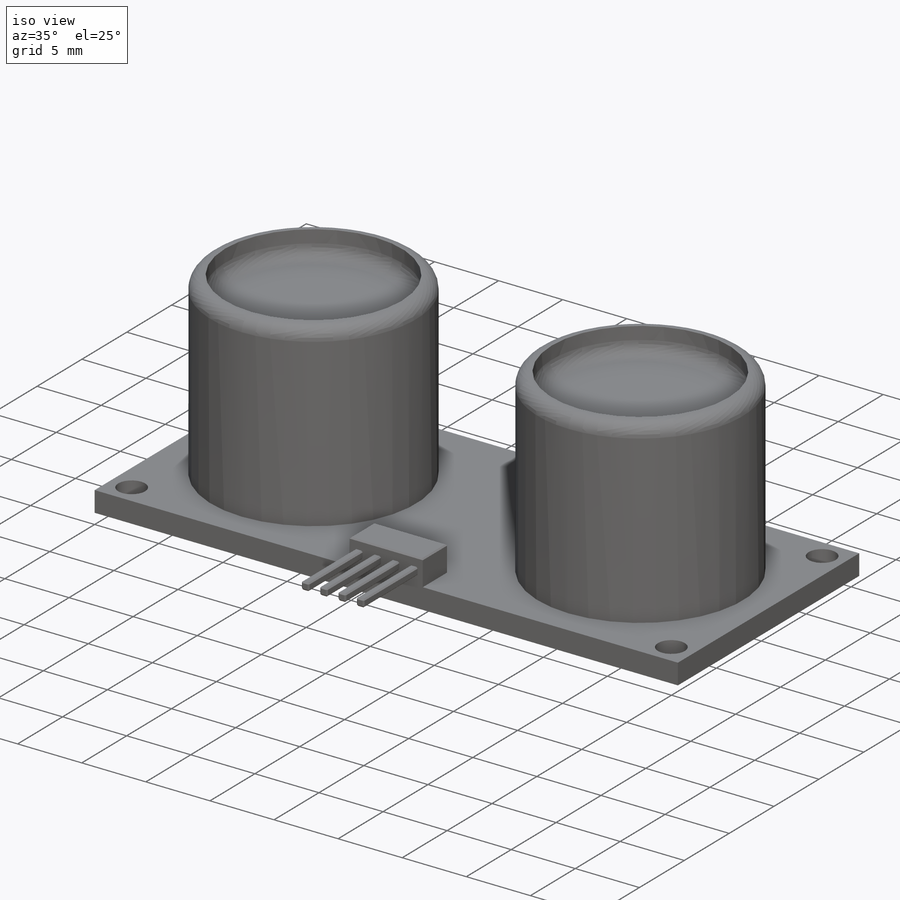
[diagram: iso view]
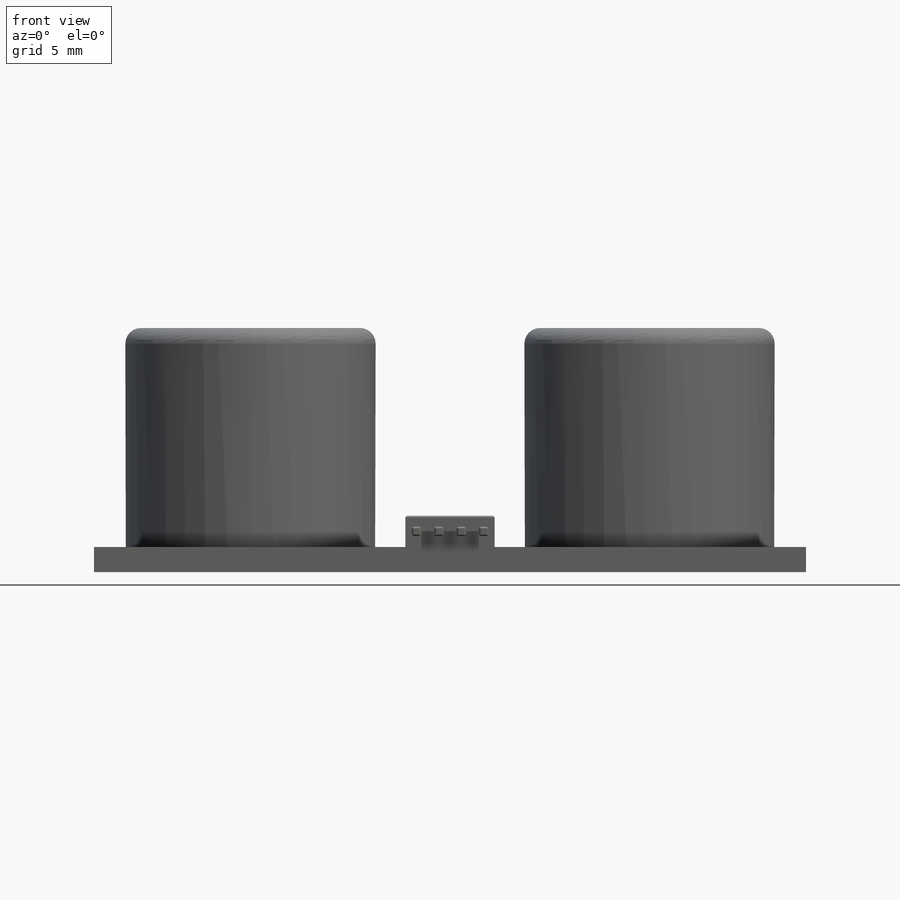
[diagram: front view]
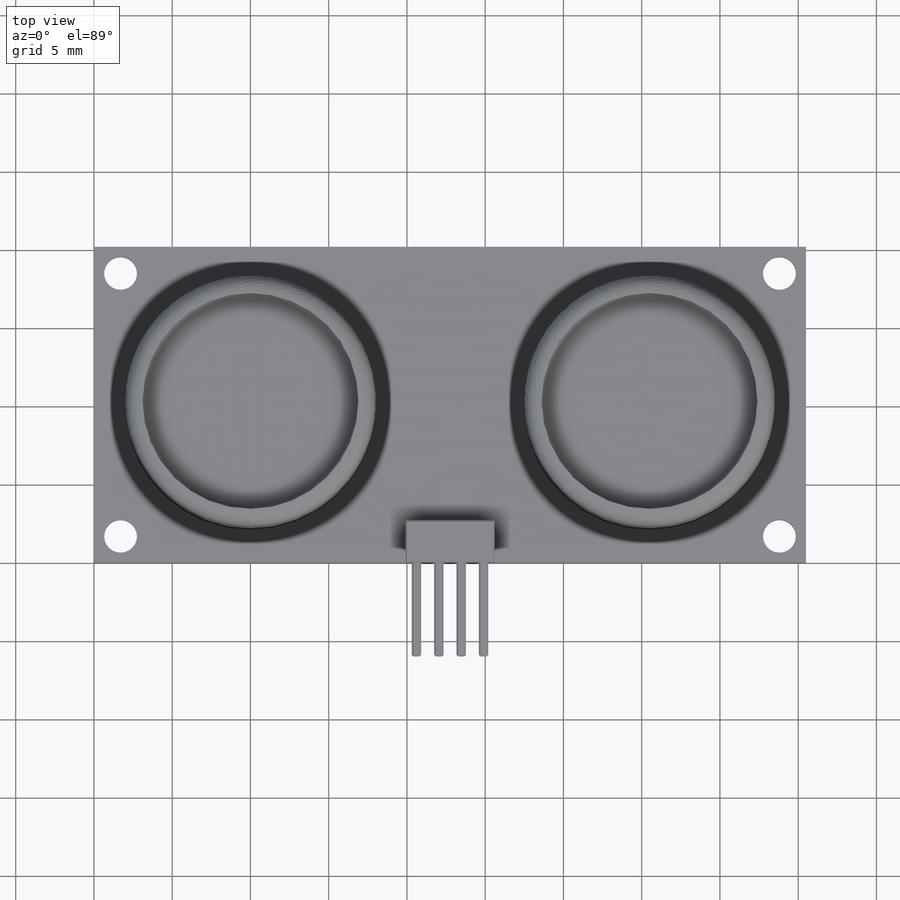
[diagram: top view]
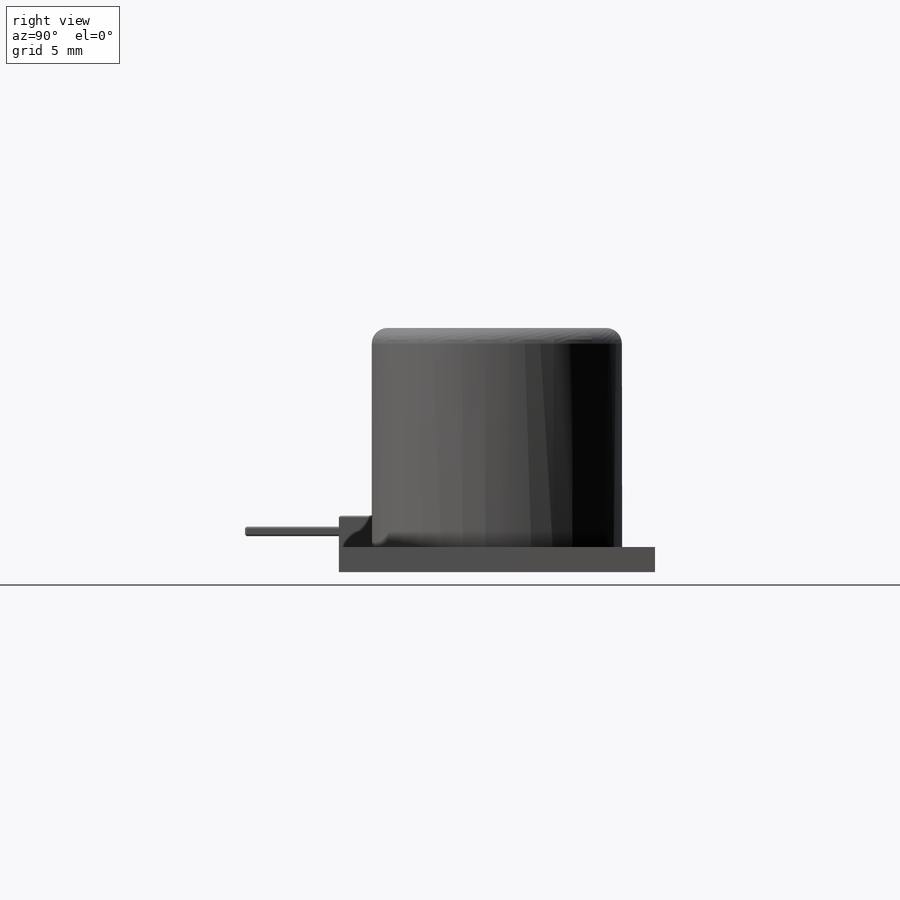
[diagram: right view]
SOLIDWORKS PART (.sldprt)
format: sldprt  version: not decoded by parser v0  size: 427,008 bytes
history: native  units: mm
features: sketch x7, extrude x4, cut_extrude x2, fillet x2, mirror x2, chamfer x2, material x1, plane x1 (+13 scaffold rows collapsed)
feature tree (34):
  scaffold x13  (default folders/planes/origin — collapsed)
  material  "Material <not specified>"
  sketch  "Sketch1"  dims[c1.D1=20.0mm c1.D2=43.0mm c2.D1=20.2mm c2.D2=45.5mm c2.D3=~24.998828mm]
  extrude  "Boss-Extrude1"  Depth=1.6mm
  sketch  "Sketch2"  dims[c1.D1=16.0mm c1.D2=16.0mm c2.D1=~20.034229mm c2.D2=10.0mm]
  extrude  "Boss-Extrude2"  Depth=14mm
  sketch  "Sketch3"  dims[D1=~13.787925mm]
  cut_extrude  "Cut-Extrude1"  Depth=2mm
  fillet  "Fillet1"  Radius=1mm
  fillet  "Fillet2"  Radius=1mm
  plane  "Plane1"
  mirror  "Mirror1"
  sketch  "Sketch4"  dims[D1=2.85mm D2=2.85mm D3=2.7mm D4=2.0mm]
  extrude  "Boss-Extrude3"  Depth=2mm
  sketch  "Sketch5"  dims[c1.D1=0.75mm c1.D2=0.75mm c2.D1=0.6mm c2.D2=4.0]
  extrude  "Boss-Extrude4"  Depth=6mm
  chamfer  "Chamfer1"  Distance=0.1mm Angle=45deg
  chamfer  "Chamfer2"  Distance=0.1mm Angle=45deg
  sketch  "Sketch6"  dims[c1.D5=2.1mm c1.D6=2.1mm c1.D7=2.1mm c1.D8=2.1mm c1.D1=2.1mm c1.D2=2.1mm c2.D1=22.0mm c2.D2=20.0mm c2.D3=1.7mm c2.D4=1.7mm c2.D5=~9.947835mm c3.D1=1.7mm c3.D2=1.7mm]
  cut_extrude  "Cut-Extrude2"  [1 undecoded]
  sketch  "Sketch7"  dims[D1=~6.190568mm]
  mirror  "Axis2"
decode coverage: 16 of 19 modeling features carry decoded parameters
note: ~ marks probable driven/reference dimensions
note: 1 parameter value undecoded
note: suppression state not decoded; provenance and decode notes live in map.json
